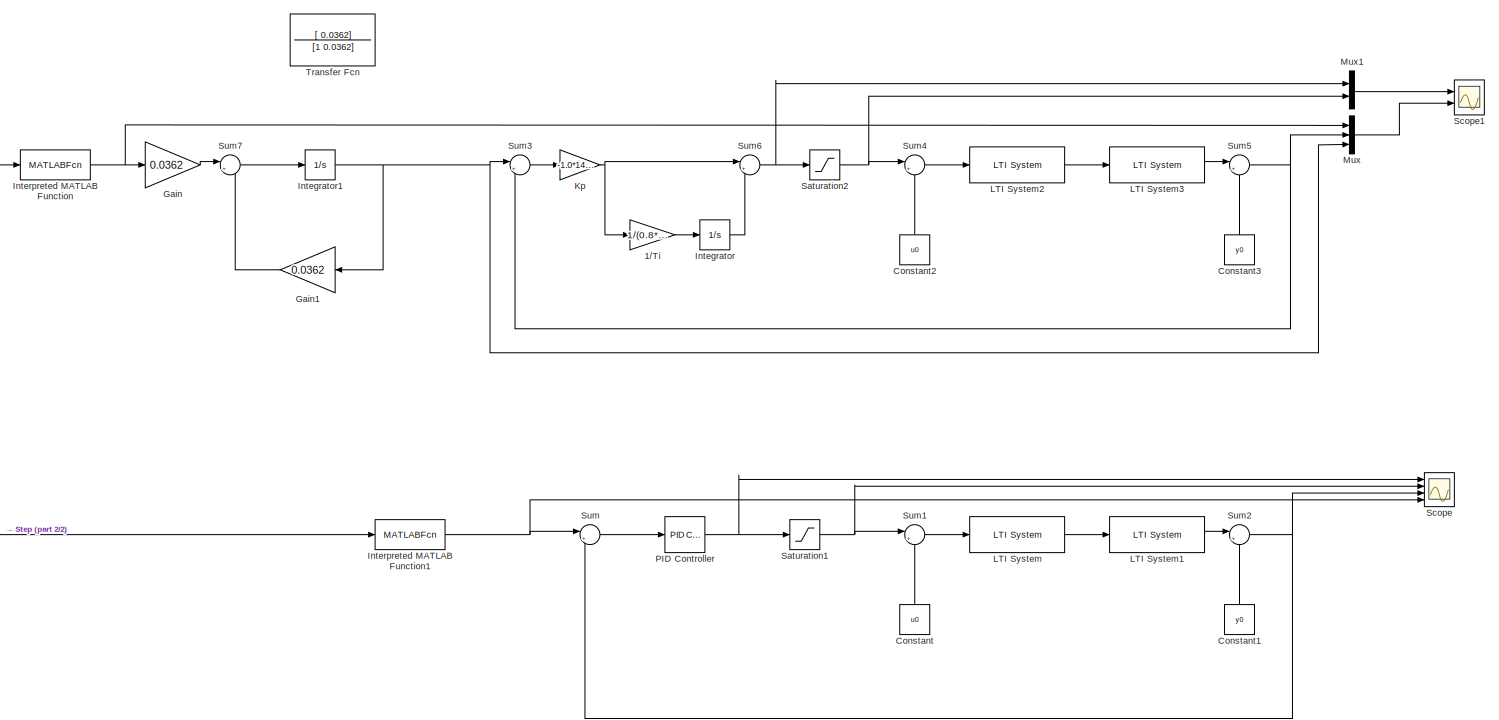
[diagram: root canvas - part 1/2, most of the canvas]
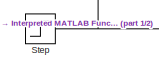
[diagram: root canvas - part 2/2, bottom left region]
MODEL slx_70b374b2ea9d
KIND model
CONFIG AbsTol = auto
CONFIG EnableMultiTasking = off
CONFIG FixedStep = auto
CONFIG MaxStep = auto
CONFIG MinStep = auto
CONFIG RelTol = 1e-3
CONFIG SampleTimeConstraint = Unconstrained
CONFIG SolverName = VariableStepAuto
CONFIG StartTime = 0.0
CONFIG StopTime = 400
BLOCK [Gain] 1//Ti
  Gain = 1/(0.8*27.6)
BLOCK [Constant] Constant
  NameLocation = right
  Value = u0
BLOCK [Constant] Constant1
  NameLocation = right
  Value = y0
BLOCK [Constant] Constant2
  NameLocation = right
  Value = u0
BLOCK [Constant] Constant3
  NameLocation = right
  Value = y0
BLOCK [Gain] Gain
  Gain = 0.0362
BLOCK [Gain] Gain1
  Gain = 0.0362
  NameLocation = top
BLOCK [Integrator] Integrator
  InitialCondition = 54000
  Ports = [1, 1]
BLOCK [Integrator] Integrator1
  InitialCondition = 41000
  Ports = [1, 1]
BLOCK [MATLABFcn] Interpreted MATLAB Function
  MATLABFcn = celsius_to_raw
  Ports = [1, 1]
BLOCK [MATLABFcn] Interpreted MATLAB Function1
  MATLABFcn = celsius_to_raw
  Ports = [1, 1]
BLOCK [Gain] Kp
  Gain = -1.0*14.4
BLOCK [Reference] LTI System  REF=cstblocks/LTI System
  Ports = [1, 1]
  SourceBlock = cstblocks/LTI System
  SourceProductBaseCode = CT
  SourceType = LTI Block
BLOCK [Reference] LTI System1  REF=cstblocks/LTI System
  Ports = [1, 1]
  SourceBlock = cstblocks/LTI System
  SourceProductBaseCode = CT
  SourceType = LTI Block
BLOCK [Reference] LTI System2  REF=cstblocks/LTI System
  Ports = [1, 1]
  SourceBlock = cstblocks/LTI System
  SourceProductBaseCode = CT
  SourceType = LTI Block
BLOCK [Reference] LTI System3  REF=cstblocks/LTI System
  Ports = [1, 1]
  SourceBlock = cstblocks/LTI System
  SourceProductBaseCode = CT
  SourceType = LTI Block
BLOCK [Mux] Mux
  DisplayOption = bar
  Inputs = 3
  Ports = [3, 1]
BLOCK [Mux] Mux1
  DisplayOption = bar
  Inputs = 2
  Ports = [2, 1]
BLOCK [Reference] PID Controller  REF=pid_lib/PID Controller
  Ports = [1, 1]
  SourceBlock = pid_lib/PID Controller
  SourceProductBaseCode = SL
  SourceType = PID 1dof
BLOCK [Saturate] Saturation1
  LowerLimit = 32786
  UpperLimit = 65535
BLOCK [Saturate] Saturation2
  LowerLimit = 32786
  UpperLimit = 65535
BLOCK [Scope] Scope
  Floating = off
  NumInputPorts = 4
  Ports = [4]
  ScopeSpecificationString = Simulink.scopes.TimeScopeBlockCfg('CurrentConfiguration', extmgr.ConfigurationSet(extmgr.Configuration('Core','General UI',true),extmgr.Configuration('Core','Source UI',true),extmgr.Configuration('Sources','WiredSimulink',true),extmgr.Configuration('Visuals','Time Domain',true,'SerializedDisplays',{struct('MinYLimReal','-5692.38781','MaxYLimReal','59642.52045','YLabelReal','','MinYLimMag','  0.000...<+3533ch>
BLOCK [Scope] Scope1
  Floating = off
  NumInputPorts = 2
  Ports = [2]
  ScopeSpecificationString = Simulink.scopes.TimeScopeBlockCfg('CurrentConfiguration', extmgr.ConfigurationSet(extmgr.Configuration('Core','General UI',true),extmgr.Configuration('Core','Source UI',true),extmgr.Configuration('Sources','WiredSimulink',true,'DataLoggingVariableName','ScopeData1'),extmgr.Configuration('Visuals','Time Domain',true,'SerializedDisplays',{struct('MinYLimReal','48506.11442','MaxYLimReal','54333.83303...<+2141ch>
BLOCK [Step] Step
  After = 34.5
  Before = 29.5
  SampleTime = 0
  Time = 100
BLOCK [Sum] Sum
  Inputs = |+-
  Ports = [2, 1]
BLOCK [Sum] Sum1
  Inputs = |+-
  Ports = [2, 1]
BLOCK [Sum] Sum2
  Inputs = |++
  Ports = [2, 1]
BLOCK [Sum] Sum3
  Inputs = |+-
  Ports = [2, 1]
BLOCK [Sum] Sum4
  Inputs = |+-
  Ports = [2, 1]
BLOCK [Sum] Sum5
  Inputs = |++
  Ports = [2, 1]
BLOCK [Sum] Sum6
  Inputs = |++
  Ports = [2, 1]
BLOCK [Sum] Sum7
  Inputs = |+-
  Ports = [2, 1]
BLOCK [TransferFcn] Transfer Fcn
  Denominator = [1  0.0362]
  Numerator = [ 0.0362]
LINE 1//Ti:1 -> Integrator:1
LINE Constant1:1 -> Sum2:2
LINE Constant2:1 -> Sum4:2
LINE Constant3:1 -> Sum5:2
LINE Constant:1 -> Sum1:2
LINE Gain1:1 -> Sum7:2
LINE Gain:1 -> Sum7:1
NET Integrator1:1 -> Gain1:1, Mux:3, Sum3:1
LINE Integrator:1 -> Sum6:2
NET Interpreted MATLAB Function1:1 -> Scope:4, Sum:1
NET Interpreted MATLAB Function:1 -> Gain:1, Mux:1
NET Kp:1 -> 1//Ti:1, Sum6:1
LINE LTI System1:1 -> Sum2:1
LINE LTI System2:1 -> LTI System3:1
LINE LTI System3:1 -> Sum5:1
LINE LTI System:1 -> LTI System1:1
LINE Mux1:1 -> Scope1:1
LINE Mux:1 -> Scope1:2
NET PID Controller:1 -> Saturation1:1, Scope:1
NET Saturation1:1 -> Scope:2, Sum1:1
NET Saturation2:1 -> Mux1:2, Sum4:1
NET Step:1 -> Interpreted MATLAB Function1:1, Interpreted MATLAB Function:1
LINE Sum1:1 -> LTI System:1
NET Sum2:1 -> Scope:3, Sum:2
LINE Sum3:1 -> Kp:1
LINE Sum4:1 -> LTI System2:1
NET Sum5:1 -> Mux:2, Sum3:2
NET Sum6:1 -> Mux1:1, Saturation2:1
LINE Sum7:1 -> Integrator1:1
LINE Sum:1 -> PID Controller:1
note: NET lines group one-source signal fan-out (src -> all destinations, sorted); 1:1 wires keep LINE
